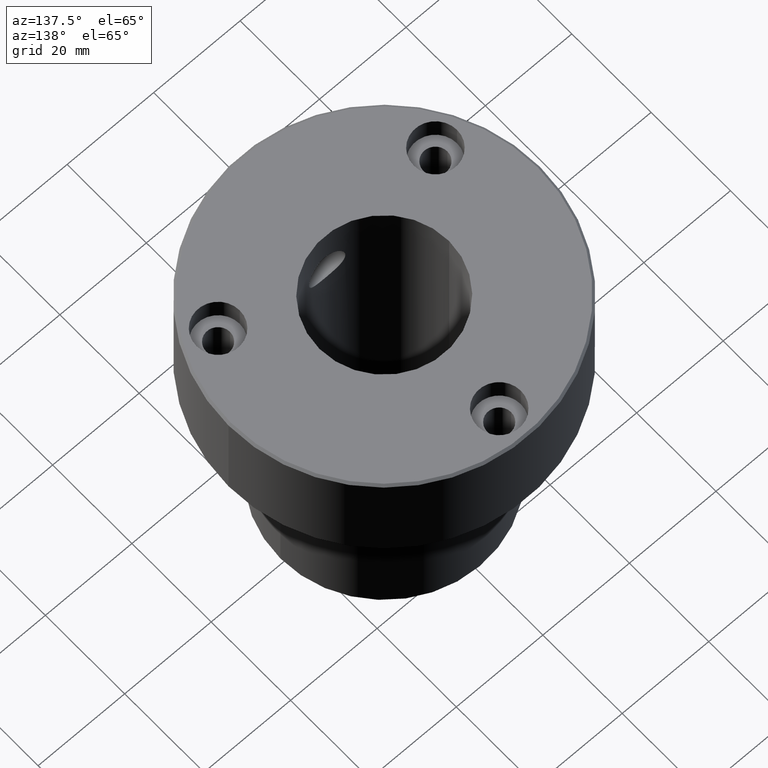
[diagram: clean part render]
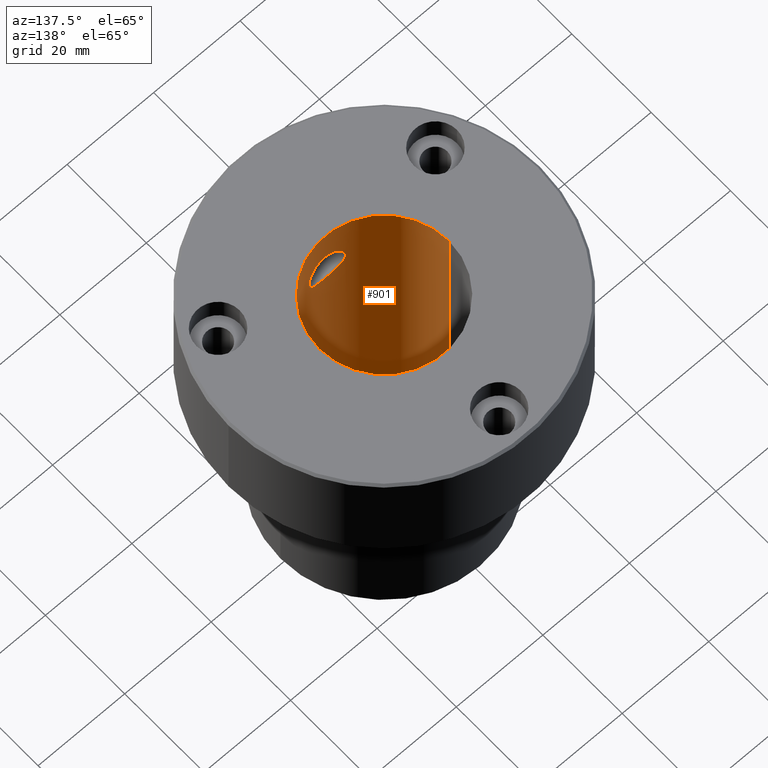
[diagram: same view with one face highlighted and labeled with its STEP entity id]
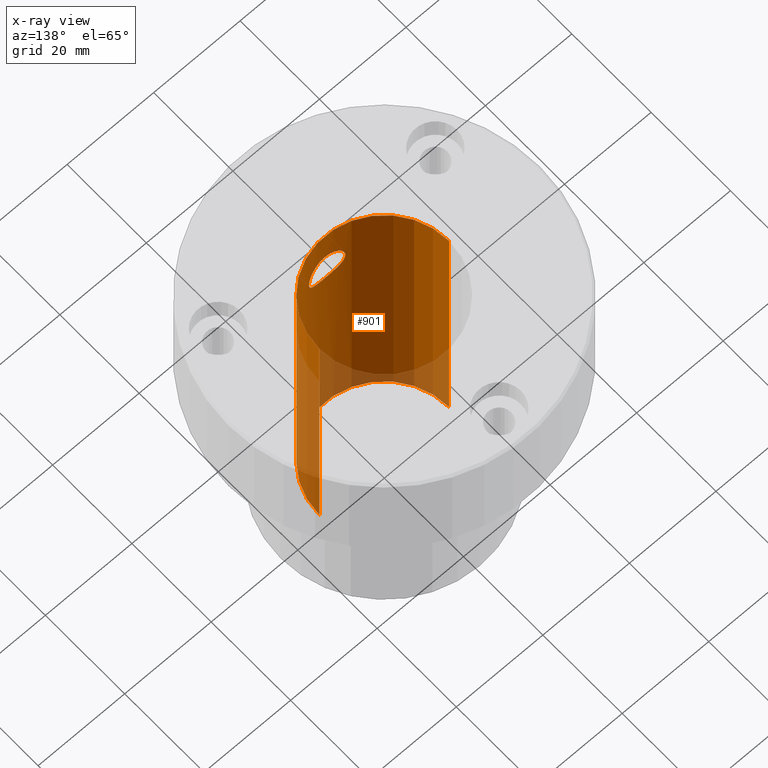
[diagram: x-ray of the same camera — body ghosted, the highlighted face saturated]
A machine part, auxiliary view. The second image highlights one B-rep face of the part: STEP entity #901.
The next image is the same camera in x-ray: the body ghosted, the highlighted face saturated — about 23% of this face is hidden behind the body in this view.
In plain terms, the highlighted cylindrical surface (partial cylindrical patch) has radius 15 mm, axis along (-0, -0, -1).
Its self-contained STEP definition (entity closure, byte-faithful):
#27 = EDGE_LOOP ( 'NONE', ( #1119, #594 ) ) ;
#34 = CARTESIAN_POINT ( 'NONE',  ( -0.5557179214052143656, -14.99216630174810660, -16.93877096004858984 ) ) ;
#48 = CARTESIAN_POINT ( 'NONE',  ( -2.789649033927356303, -14.73963129265907313, -15.92342546297296657 ) ) ;
#52 = AXIS2_PLACEMENT_3D ( 'NONE', #718, #916, #1093 ) ;
#69 = EDGE_CURVE ( 'NONE', #518, #799, #709, .T. ) ;
#72 = CARTESIAN_POINT ( 'NONE',  ( -1.363381281885440499, -14.94009675518270619, -8.750637962175881412 ) ) ;
#99 = EDGE_LOOP ( 'NONE', ( #844, #619, #1017, #1045 ) ) ;
#111 = CARTESIAN_POINT ( 'NONE',  ( -3.788287792981190005, -14.51415920131169557, -14.62151937483763930 ) ) ;
#130 = CARTESIAN_POINT ( 'NONE',  ( 3.349837540369000610, -14.62202808062460591, -15.32553244717134078 ) ) ;
#136 = VERTEX_POINT ( 'NONE', #1055 ) ;
#149 = CIRCLE ( 'NONE', #769, 15.00000000000000000 ) ;
#170 = CARTESIAN_POINT ( 'NONE',  ( 5.163440304025061093E-16, -15.00000000000000000, -8.533599999999982089 ) ) ;
#173 = DIRECTION ( 'NONE',  ( -0.000000000000000000, -0.000000000000000000, -1.000000000000000000 ) ) ;
#186 = B_SPLINE_CURVE_WITH_KNOTS ( 'NONE', 3,
 ( #948, #1043, #852, #256, #72, #660, #564, #958, #864, #739, #762, #1053, #364, #869, #1142, #962, #273, #464, #812, #607, #995, #111, #723, #806, #640, #48, #622, #1090, #1184, #1197, #241, #34, #409, #517 ),
 .UNSPECIFIED., .F., .F.,
 ( 4, 2, 2, 2, 2, 2, 2, 2, 2, 2, 2, 2, 2, 2, 2, 2, 4 ),
 ( 0.01324947311960769473, 0.01407734032581762010, 0.01490520753202754546, 0.01573307473823747082, 0.01656094194444739792, 0.01738880915065732155, 0.01821667635686724518, 0.01904454356307717228, 0.01987241076928709937, 0.02070027797549702300, 0.02152814518170694663, 0.02235601238791687373, 0.02318387959412680083, 0.02401174680033672099, 0.02483961400654664115, 0.02566748121275656477, 0.02649534841896648840 ),
 .UNSPECIFIED. ) ;
#196 = CARTESIAN_POINT ( 'NONE',  ( 4.080403528029064475, -14.43445564553695171, -13.84797281064122387 ) ) ;
#210 = DIRECTION ( 'NONE',  ( -1.000000000000000000, 0.000000000000000000, 0.000000000000000000 ) ) ;
#220 = CARTESIAN_POINT ( 'NONE',  ( 0.000000000000000000, -15.00000000000000000, -16.96639999999999304 ) ) ;
#241 = CARTESIAN_POINT ( 'NONE',  ( -1.098482043504515504, -14.96219268782289014, -16.83019138816006688 ) ) ;
#256 = CARTESIAN_POINT ( 'NONE',  ( -1.099734498910271974, -14.96214455430115819, -8.669980173720807315 ) ) ;
#258 = CARTESIAN_POINT ( 'NONE',  ( 4.000238651651357280, -14.45718602232474659, -11.38873462834007810 ) ) ;
#260 = CARTESIAN_POINT ( 'NONE',  ( 1.871523049191144317, -14.88498657460282004, -8.961695923571223688 ) ) ;
#266 = CARTESIAN_POINT ( 'NONE',  ( 15.00000000000000000, 1.836970198721029589E-15, 0.000000000000000000 ) ) ;
#273 = CARTESIAN_POINT ( 'NONE',  ( -4.216352017640442540, -14.39522058413252203, -12.47130328669281241 ) ) ;
#274 = CARTESIAN_POINT ( 'NONE',  ( -15.00000000000000000, 0.000000000000000000, 0.000000000000000000 ) ) ;
#292 = CARTESIAN_POINT ( 'NONE',  ( 15.00000000000000000, 1.836970198721029589E-15, -66.99999999999998579 ) ) ;
#296 = VERTEX_POINT ( 'NONE', #684 ) ;
#314 = CYLINDRICAL_SURFACE ( 'NONE', #52, 15.00000000000000000 ) ;
#320 = CARTESIAN_POINT ( 'NONE',  ( 2.573779463082420449, -14.77935223856447067, -16.10102815989712255 ) ) ;
#321 = CARTESIAN_POINT ( 'NONE',  ( 0.000000000000000000, 0.000000000000000000, 0.000000000000000000 ) ) ;
#327 = DIRECTION ( 'NONE',  ( -1.000000000000000000, 0.000000000000000000, 0.000000000000000000 ) ) ;
#360 = CARTESIAN_POINT ( 'NONE',  ( 2.118550378759262554, -14.85142972030492992, -9.094185064825447640 ) ) ;
#363 = DIRECTION ( 'NONE',  ( -0.000000000000000000, -0.000000000000000000, -1.000000000000000000 ) ) ;
#364 = CARTESIAN_POINT ( 'NONE',  ( -3.786174651115455703, -14.51472117564737552, -10.87373599696997317 ) ) ;
#368 = CARTESIAN_POINT ( 'NONE',  ( 0.2760607535749415309, -15.00000000000001066, -8.533599999999985641 ) ) ;
#400 = EDGE_CURVE ( 'NONE', #296, #1134, #186, .T. ) ;
#409 = CARTESIAN_POINT ( 'NONE',  ( -0.2800325521568413634, -14.99999999999999822, -16.96639999999999304 ) ) ;
#420 = CARTESIAN_POINT ( 'NONE',  ( 1.874797563916087428, -14.88458723598761146, -16.53674774509813261 ) ) ;
#456 = CARTESIAN_POINT ( 'NONE',  ( 3.175500922595541287, -14.66136930469401101, -9.962498046634854276 ) ) ;
#464 = CARTESIAN_POINT ( 'NONE',  ( -4.216447857052740389, -14.39519251247612353, -13.02724296821414285 ) ) ;
#466 = LINE ( 'NONE', #266, #468 ) ;
#468 = VECTOR ( 'NONE', #363, 1000.000000000000000 ) ;
#480 = LINE ( 'NONE', #274, #1157 ) ;
#498 = B_SPLINE_CURVE_WITH_KNOTS ( 'NONE', 3,
 ( #220, #625, #1187, #618, #520, #420, #1191, #320, #725, #1012, #130, #530, #924, #1199, #196, #596, #985, #543, #1218, #1212, #258, #662, #648, #955, #456, #1234, #1239, #360, #260, #1143, #880, #966, #368, #170 ),
 .UNSPECIFIED., .F., .F.,
 ( 4, 2, 2, 2, 2, 2, 2, 2, 2, 2, 2, 2, 2, 2, 2, 2, 4 ),
 ( 0.000000000000000000, 0.0008280920699754842820, 0.001656184139950968130, 0.002484276209926451762, 0.003312368279901935393, 0.004140460349877415555, 0.004968552419852896584, 0.005796644489828376746, 0.006624736559803857776, 0.007452828629779337070, 0.008280920699754817232, 0.009109012769730298262, 0.009937104839705777556, 0.01076519690968125685, 0.01159328897965673615, 0.01242138104963221718, 0.01324947311960769473 ),
 .UNSPECIFIED. ) ;
#504 = VERTEX_POINT ( 'NONE', #292 ) ;
#517 = CARTESIAN_POINT ( 'NONE',  ( 0.000000000000000000, -15.00000000000000000, -16.96639999999999304 ) ) ;
#518 = VERTEX_POINT ( 'NONE', #606 ) ;
#520 = CARTESIAN_POINT ( 'NONE',  ( 1.364755306999470896, -14.93998815405847935, -16.74897078542570839 ) ) ;
#530 = CARTESIAN_POINT ( 'NONE',  ( 3.658033540508597081, -14.54798636767144160, -14.86508145228781963 ) ) ;
#543 = CARTESIAN_POINT ( 'NONE',  ( 4.216521866726160361, -14.39517083482009596, -12.47527521991592003 ) ) ;
#564 = CARTESIAN_POINT ( 'NONE',  ( -2.118218203253310339, -14.85148474866925561, -9.093948116730299347 ) ) ;
#594 = ORIENTED_EDGE ( 'NONE', *, *, #400, .T. ) ;
#596 = CARTESIAN_POINT ( 'NONE',  ( 4.189203805219538168, -14.40325568102085896, -13.30299974936123597 ) ) ;
#606 = CARTESIAN_POINT ( 'NONE',  ( 15.00000000000000000, 1.836970198721029589E-15, 0.000000000000000000 ) ) ;
#607 = CARTESIAN_POINT ( 'NONE',  ( -4.081282344278019281, -14.43420554735150318, -13.84438047358491630 ) ) ;
#618 = CARTESIAN_POINT ( 'NONE',  ( 1.096147129401414011, -14.96234683843009883, -16.83075315627250745 ) ) ;
#619 = ORIENTED_EDGE ( 'NONE', *, *, #1000, .T. ) ;
#622 = CARTESIAN_POINT ( 'NONE',  ( -2.575060048083268160, -14.77913474058868992, -16.10008272419339903 ) ) ;
#625 = CARTESIAN_POINT ( 'NONE',  ( 0.2801086140828175086, -14.99999999999999822, -16.96639999999999304 ) ) ;
#640 = CARTESIAN_POINT ( 'NONE',  ( -3.176095330024601537, -14.66121723563982471, -15.53660893491228023 ) ) ;
#648 = CARTESIAN_POINT ( 'NONE',  ( 3.656151142216420791, -14.54844008885622308, -10.63207790542621467 ) ) ;
#660 = CARTESIAN_POINT ( 'NONE',  ( -1.871477080897661072, -14.88498817969605348, -8.961691833409137331 ) ) ;
#662 = CARTESIAN_POINT ( 'NONE',  ( 3.787456295439587173, -14.51438292744140668, -10.87646657559013796 ) ) ;
#684 = CARTESIAN_POINT ( 'NONE',  ( 5.163440304025061093E-16, -15.00000000000000000, -8.533599999999982089 ) ) ;
#709 = CIRCLE ( 'NONE', #1009, 15.00000000000000000 ) ;
#718 = CARTESIAN_POINT ( 'NONE',  ( 0.000000000000000000, 0.000000000000000000, 0.000000000000000000 ) ) ;
#723 = CARTESIAN_POINT ( 'NONE',  ( -3.658835617702517418, -14.54778321061778179, -14.86368410901076942 ) ) ;
#725 = CARTESIAN_POINT ( 'NONE',  ( 2.789123971074486175, -14.73973245398936172, -15.92390001433398261 ) ) ;
#726 = DIRECTION ( 'NONE',  ( 0.000000000000000000, 0.000000000000000000, -1.000000000000000000 ) ) ;
#739 = CARTESIAN_POINT ( 'NONE',  ( -3.175221196892427766, -14.66142406124060038, -9.962237008842615538 ) ) ;
#762 = CARTESIAN_POINT ( 'NONE',  ( -3.351736335270323330, -14.62157181705269338, -10.17730615267434580 ) ) ;
#769 = AXIS2_PLACEMENT_3D ( 'NONE', #989, #1088, #210 ) ;
#799 = VERTEX_POINT ( 'NONE', #1015 ) ;
#806 = CARTESIAN_POINT ( 'NONE',  ( -3.350904092690938807, -14.62178225053595781, -15.32413681680681172 ) ) ;
#812 = CARTESIAN_POINT ( 'NONE',  ( -4.189273870252609555, -14.40323365765227059, -13.30183207110332333 ) ) ;
#826 = FACE_BOUND ( 'NONE', #27, .T. ) ;
#844 = ORIENTED_EDGE ( 'NONE', *, *, #69, .F. ) ;
#852 = CARTESIAN_POINT ( 'NONE',  ( -0.5521665269367925788, -14.99234130342648541, -8.560597909312681608 ) ) ;
#864 = CARTESIAN_POINT ( 'NONE',  ( -2.786222849068737073, -14.74029671981019263, -9.573427258917396543 ) ) ;
#869 = CARTESIAN_POINT ( 'NONE',  ( -3.999942638680281881, -14.45727180981263160, -11.38766964906344903 ) ) ;
#880 = CARTESIAN_POINT ( 'NONE',  ( 1.099941375396984666, -14.96209678288063927, -8.670158076009311543 ) ) ;
#901 = ADVANCED_FACE ( 'NONE', ( #826, #1080 ), #314, .F. ) ;
#916 = DIRECTION ( 'NONE',  ( -0.000000000000000000, -0.000000000000000000, -1.000000000000000000 ) ) ;
#924 = CARTESIAN_POINT ( 'NONE',  ( 3.788008399157460460, -14.51423062574237122, -14.62198347340127036 ) ) ;
#948 = CARTESIAN_POINT ( 'NONE',  ( 5.163440304025061093E-16, -15.00000000000000000, -8.533599999999982089 ) ) ;
#955 = CARTESIAN_POINT ( 'NONE',  ( 3.351450189507802158, -14.62163916327500601, -10.17690520954583633 ) ) ;
#958 = CARTESIAN_POINT ( 'NONE',  ( -2.574900122024131210, -14.77915210552179381, -9.399857750579281301 ) ) ;
#962 = CARTESIAN_POINT ( 'NONE',  ( -4.188352876475185838, -14.40350188563583878, -12.19182070249505756 ) ) ;
#966 = CARTESIAN_POINT ( 'NONE',  ( 0.5559374110865438201, -14.99216944823369779, -8.561215600079586707 ) ) ;
#967 = EDGE_CURVE ( 'NONE', #1134, #296, #498, .T. ) ;
#976 = CARTESIAN_POINT ( 'NONE',  ( 0.000000000000000000, -15.00000000000000000, -16.96639999999999304 ) ) ;
#981 = EDGE_CURVE ( 'NONE', #799, #136, #480, .T. ) ;
#985 = CARTESIAN_POINT ( 'NONE',  ( 4.216277309183957378, -14.39524246646423400, -13.02845288548078884 ) ) ;
#989 = CARTESIAN_POINT ( 'NONE',  ( 0.000000000000000000, 0.000000000000000000, -66.99999999999998579 ) ) ;
#995 = CARTESIAN_POINT ( 'NONE',  ( -3.999351948024216341, -14.45742458805531427, -14.11341232526257450 ) ) ;
#1000 = EDGE_CURVE ( 'NONE', #518, #504, #466, .T. ) ;
#1009 = AXIS2_PLACEMENT_3D ( 'NONE', #321, #726, #327 ) ;
#1012 = CARTESIAN_POINT ( 'NONE',  ( 3.175835546419956579, -14.66127531708291976, -15.53691987848717737 ) ) ;
#1015 = CARTESIAN_POINT ( 'NONE',  ( -15.00000000000000000, 0.000000000000000000, 0.000000000000000000 ) ) ;
#1017 = ORIENTED_EDGE ( 'NONE', *, *, #1194, .T. ) ;
#1043 = CARTESIAN_POINT ( 'NONE',  ( -0.2759857908228243173, -15.00000000000000355, -8.533599999999983865 ) ) ;
#1045 = ORIENTED_EDGE ( 'NONE', *, *, #981, .F. ) ;
#1053 = CARTESIAN_POINT ( 'NONE',  ( -3.656117941517759373, -14.54844666829117905, -10.63205484231755094 ) ) ;
#1055 = CARTESIAN_POINT ( 'NONE',  ( -15.00000000000000000, 0.000000000000000000, -66.99999999999998579 ) ) ;
#1080 = FACE_OUTER_BOUND ( 'NONE', #99, .T. ) ;
#1088 = DIRECTION ( 'NONE',  ( 0.000000000000000000, 0.000000000000000000, -1.000000000000000000 ) ) ;
#1090 = CARTESIAN_POINT ( 'NONE',  ( -2.117051758101950565, -14.85166151597953288, -16.40678552333753970 ) ) ;
#1093 = DIRECTION ( 'NONE',  ( -1.000000000000000000, 0.000000000000000000, 0.000000000000000000 ) ) ;
#1119 = ORIENTED_EDGE ( 'NONE', *, *, #967, .T. ) ;
#1134 = VERTEX_POINT ( 'NONE', #976 ) ;
#1142 = CARTESIAN_POINT ( 'NONE',  ( -4.080170570245797990, -14.43452023813376606, -11.65178687690359105 ) ) ;
#1143 = CARTESIAN_POINT ( 'NONE',  ( 1.362943260348743246, -14.94014088015337194, -8.750471031707540703 ) ) ;
#1157 = VECTOR ( 'NONE', #173, 1000.000000000000000 ) ;
#1184 = CARTESIAN_POINT ( 'NONE',  ( -1.875601246862711458, -14.88446856828769604, -16.53627396789427095 ) ) ;
#1187 = CARTESIAN_POINT ( 'NONE',  ( 0.5552621317609630625, -14.99216613461198833, -16.93876698047949247 ) ) ;
#1191 = CARTESIAN_POINT ( 'NONE',  ( 2.116468404431628869, -14.85173911732858443, -16.40708790515772364 ) ) ;
#1194 = EDGE_CURVE ( 'NONE', #504, #136, #149, .T. ) ;
#1197 = CARTESIAN_POINT ( 'NONE',  ( -1.367579112019236431, -14.93971257989745105, -16.74793421275982652 ) ) ;
#1199 = CARTESIAN_POINT ( 'NONE',  ( 3.998690205376392193, -14.45760612725192296, -14.11521294976347995 ) ) ;
#1212 = CARTESIAN_POINT ( 'NONE',  ( 4.080369375717317837, -14.43446442022991505, -11.65228421117959634 ) ) ;
#1218 = CARTESIAN_POINT ( 'NONE',  ( 4.188738013806688087, -14.40339026732476313, -12.19424101715930675 ) ) ;
#1234 = CARTESIAN_POINT ( 'NONE',  ( 2.785659023530580036, -14.74040907853821025, -9.572882272555473193 ) ) ;
#1239 = CARTESIAN_POINT ( 'NONE',  ( 2.574261562466100273, -14.77925565962329912, -9.399415579992663083 ) ) ;